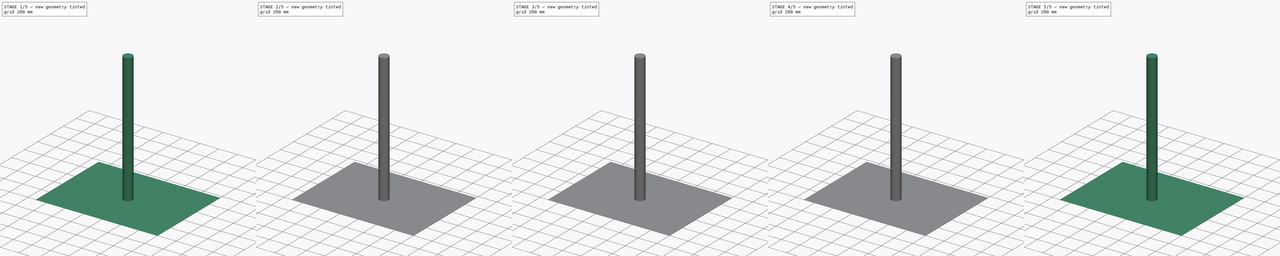
[diagram: build sequence overview — one tinted view per stage of 5, left to right]
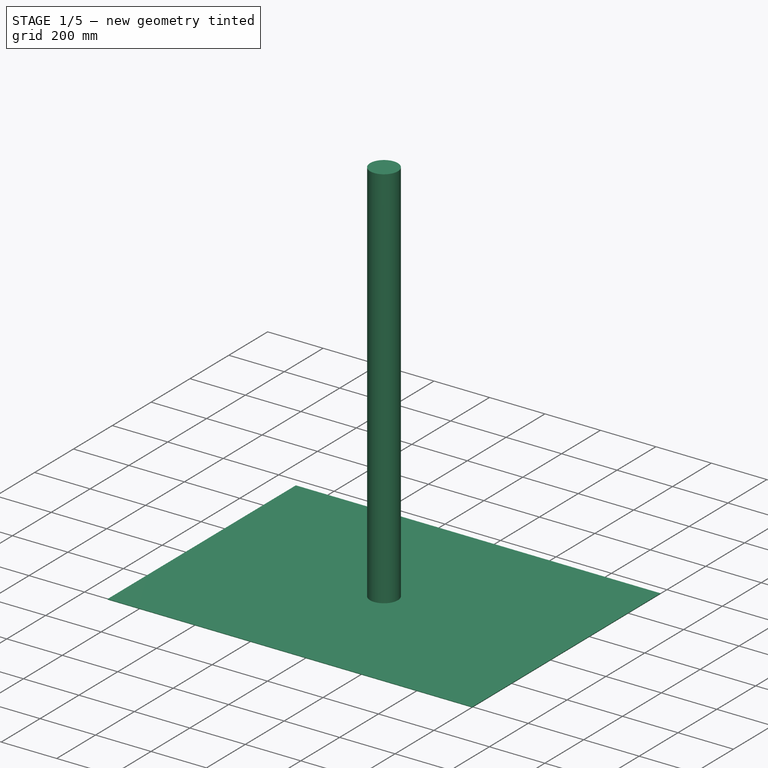
[diagram: stage 1 of 5 — iso view after this stage's code; geometry added in this stage tinted green]
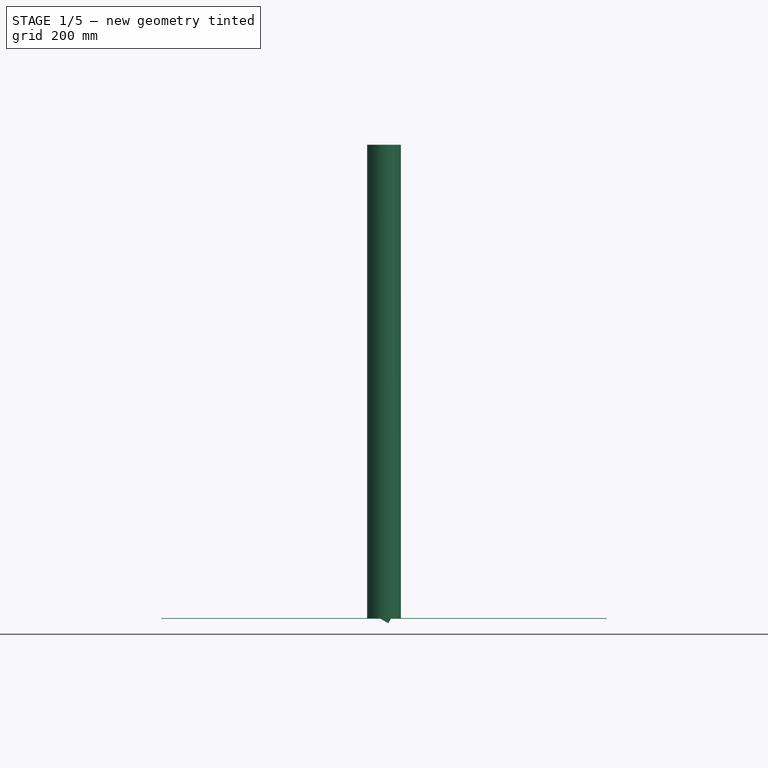
[diagram: stage 1 of 5 — front view after this stage's code; geometry added in this stage tinted green]
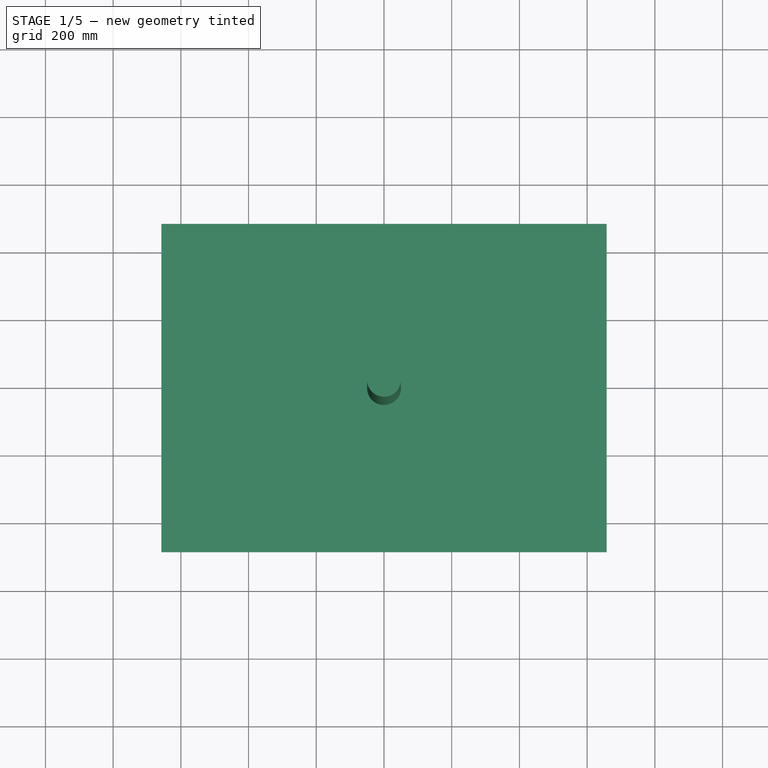
[diagram: stage 1 of 5 — top view after this stage's code; geometry added in this stage tinted green]
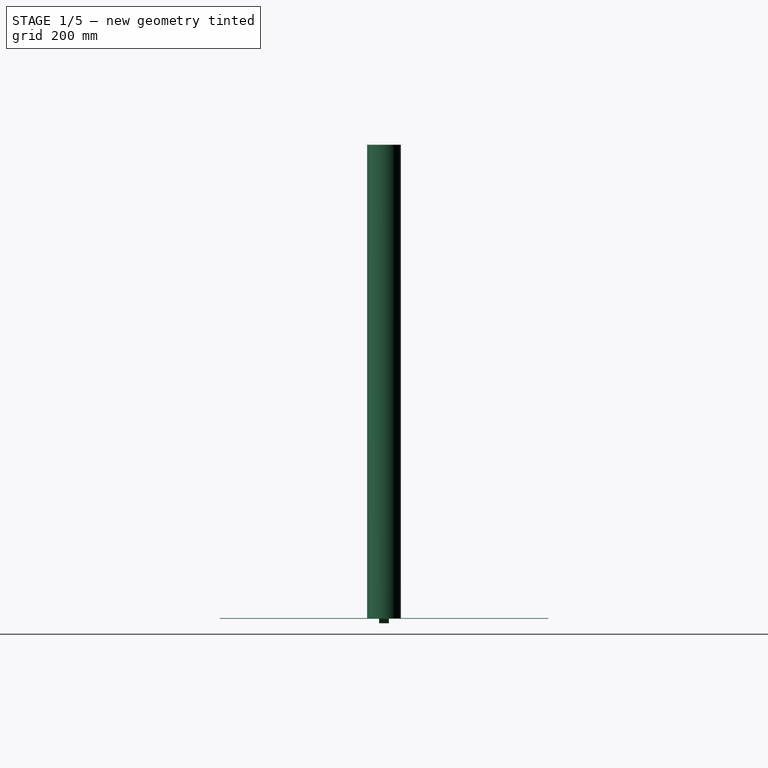
[diagram: stage 1 of 5 — right view after this stage's code; geometry added in this stage tinted green]
FCSTD DOCUMENT  (FreeCAD 0.18R16146 (Git))
Label: 05_CameraSupport
License: All rights reserved
LicenseURL: http://en.wikipedia.org/wiki/All_rights_reserved
objects: Part::Cylinder×20, Part::MultiFuse×16, Sketcher::SketchObject×6, Part::FeaturePython×6, PartDesign::Pad×5, PartDesign::Body×5, App::DocumentObjectGroup×3, Part::Box×2, Part::Part2DObjectPython×2, Part::Cut×2, Image::ImagePlane×1
note: 69 computed .brp shape members not serialized (recipe doc carries the construction recipe); baked Part::Feature solids carry a one-line shape summary decoded from their .brp

FEATURE [PartDesign::Body] Body002
  Group = -> [Sketch002,Pad002]
  Origin = -> Origin002
  Tip = -> Pad002
FEATURE [Image::ImagePlane] ImagePlane  label="Track"
  XSize = 1315
  YSize = 970
FEATURE [Part::Box] Box  label="Cube"
  AttacherType = Attacher::AttachEngine3D
  Height = 2
  Length = 1315
  Placement = pos=(-657.5,-485,0) rot=(0,0,1;0rad)
  Width = 970
FEATURE [Part::Cylinder] Cylinder018
  Angle = 360
  AttacherType = Attacher::AttachEngine3D
  Height = 1400
  Radius = 50
FEATURE [PartDesign::Body] Body004
  Group = -> [Sketch005,Pad004]
  Origin = -> Origin004
  Tip = -> Pad004
FEATURE [Part::Part2DObjectPython] Rectangle  # Draft 2D object (typed FeaturePython)
  ChamferSize = 0
  Columns = 1
  FilletRadius = 0
  Height = 84
  Length = 102
  MakeFace = true
  Placement = pos=(-28,-48,2) rot=(0,0,1;0rad)
  Rows = 1
FEATURE [Sketcher::SketchObject] Sketch004
  MapMode = 5
  Support = -> [XY_Plane003]
  sketch-geometry (8):
    g0: LineSegment StartX=-12 StartY=12 StartZ=0 EndX=12 EndY=12 EndZ=0
    g1: LineSegment StartX=12 StartY=12 StartZ=0 EndX=12 EndY=-12 EndZ=0
    g2: LineSegment StartX=12 StartY=-12 StartZ=0 EndX=-12 EndY=-12 EndZ=0
    g3: LineSegment StartX=-12 StartY=-12 StartZ=0 EndX=-12 EndY=12 EndZ=0
    g4: LineSegment StartX=-14.5 StartY=14.5 StartZ=0 EndX=14.5 EndY=14.5 EndZ=0
    g5: LineSegment StartX=14.5 StartY=14.5 StartZ=0 EndX=14.5 EndY=-14.5 EndZ=0
    g6: LineSegment StartX=14.5 StartY=-14.5 StartZ=0 EndX=-14.5 EndY=-14.5 EndZ=0
    g7: LineSegment StartX=-14.5 StartY=-14.5 StartZ=0 EndX=-14.5 EndY=14.5 EndZ=0
  constraints (20):
    c: Coincident(g0,g1)
    c: Coincident(g1,g2)
    c: Coincident(g2,g3)
    c: Coincident(g3,g0)
    c: Horizontal(g2)
    c: Vertical(g1)
    c: Symmetric(g0,g0,g-2)
    c: Symmetric(g0,g2,g-1)
    c: DistanceX(g0,g0) = 24
    c: DistanceY(g3,g3) = 24
    c: Coincident(g4,g5)
    c: Coincident(g5,g6)
    c: Coincident(g6,g7)
    c: Coincident(g7,g4)
    c: Horizontal(g6)
    c: Vertical(g5)
    c: Symmetric(g4,g4,g-2)
    c: Symmetric(g4,g6,g-1)
    c: DistanceY(g7,g7) = 29
    c: DistanceX(g4,g4) = 29
FEATURE [PartDesign::Pad] Pad003
  Length = 60
  Length2 = 100
  Profile = -> Sketch004
  Type = 0
FEATURE [PartDesign::Body] Body003
  Group = -> [Sketch004,Pad003]
  Origin = -> Origin003
  Placement = pos=(0,0,-6) rot=(0,1,0;0.523599rad)
  Tip = -> Pad003
FEATURE [Part::FeaturePython] Slice  # WARN: FeaturePython — macro-defined, semantics opaque (R4)
  Base = -> Body003
  Mode = 1
  Tolerance = 0
  Tools = -> [Rectangle]
FEATURE [Part::FeaturePython] Slice_child0  label="Slice.0"  # WARN: FeaturePython — macro-defined, semantics opaque (R4)
  Base = -> Slice
  FilterType = 1
  Invert = false
  OverrideMaxVal = 0
  WindowFrom = 80
  WindowTo = 100
  items = 0
FEATURE [Part::FeaturePython] Slice_child1  label="Slice.1"  # WARN: FeaturePython — macro-defined, semantics opaque (R4)
  Base = -> Slice
  FilterType = 1
  Invert = false
  OverrideMaxVal = 0
  WindowFrom = 80
  WindowTo = 100
  items = 1
FEATURE [App::DocumentObjectGroup] GrExplode_Slice  label="Exploded Slice"
  Group = -> [Slice_child0,Slice_child1]
FEATURE [Part::FeaturePython] Slice001  # WARN: FeaturePython — macro-defined, semantics opaque (R4)
  Base = -> Slice_child1
  Mode = 1
  Tolerance = 0
  Tools = -> [Rectangle001]
FEATURE [Part::FeaturePython] Slice001_child0  label="Slice001.0"  # WARN: FeaturePython — macro-defined, semantics opaque (R4)
  Base = -> Slice001
  FilterType = 1
  Invert = false
  OverrideMaxVal = 0
  WindowFrom = 80
  WindowTo = 100
  items = 0
FEATURE [Part::FeaturePython] Slice001_child1  label="Slice001.1"  # WARN: FeaturePython — macro-defined, semantics opaque (R4)
  Base = -> Slice001
  FilterType = 1
  Invert = false
  OverrideMaxVal = 0
  WindowFrom = 80
  WindowTo = 100
  items = 1
FEATURE [Part::Cylinder] Cylinder025
  Angle = 360
  AttacherType = Attacher::AttachEngine3D
  Height = 40
  Placement = pos=(-17,0,20.5) rot=(0,1,0;1.5708rad)
  Radius = 13
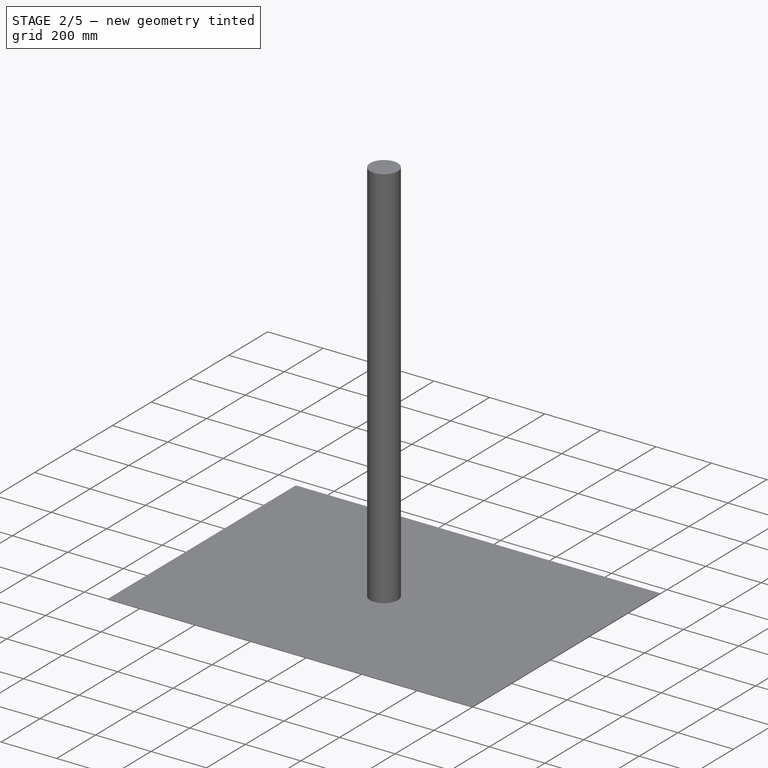
[diagram: stage 2 of 5 — iso view after this stage's code; geometry added in this stage tinted green]
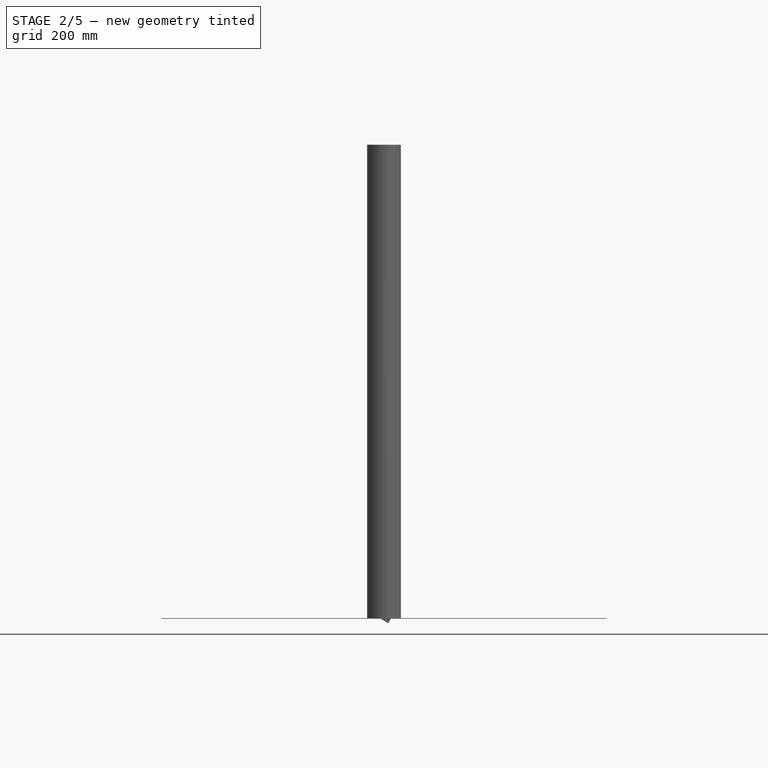
[diagram: stage 2 of 5 — front view after this stage's code; geometry added in this stage tinted green]
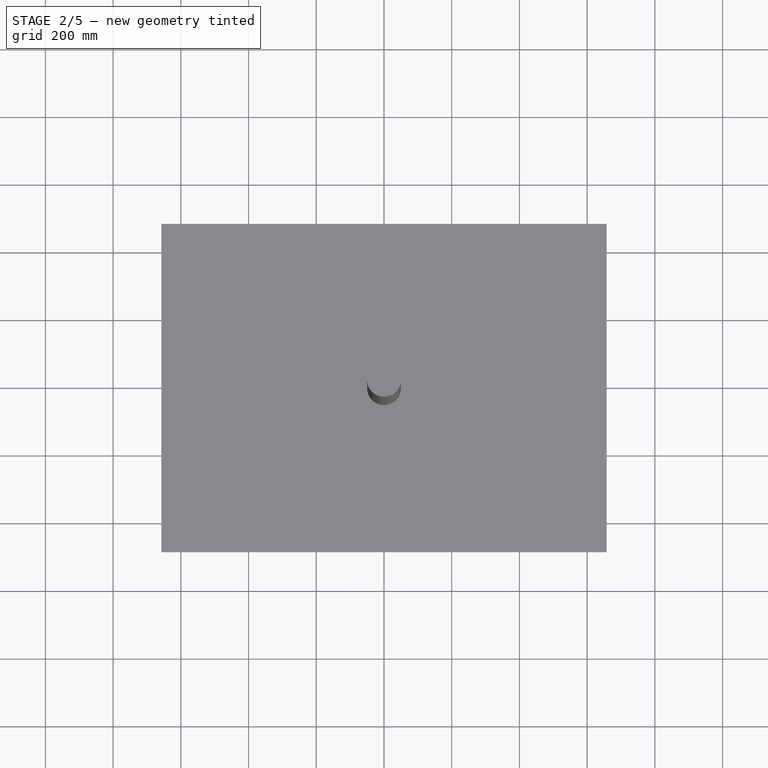
[diagram: stage 2 of 5 — top view after this stage's code; geometry added in this stage tinted green]
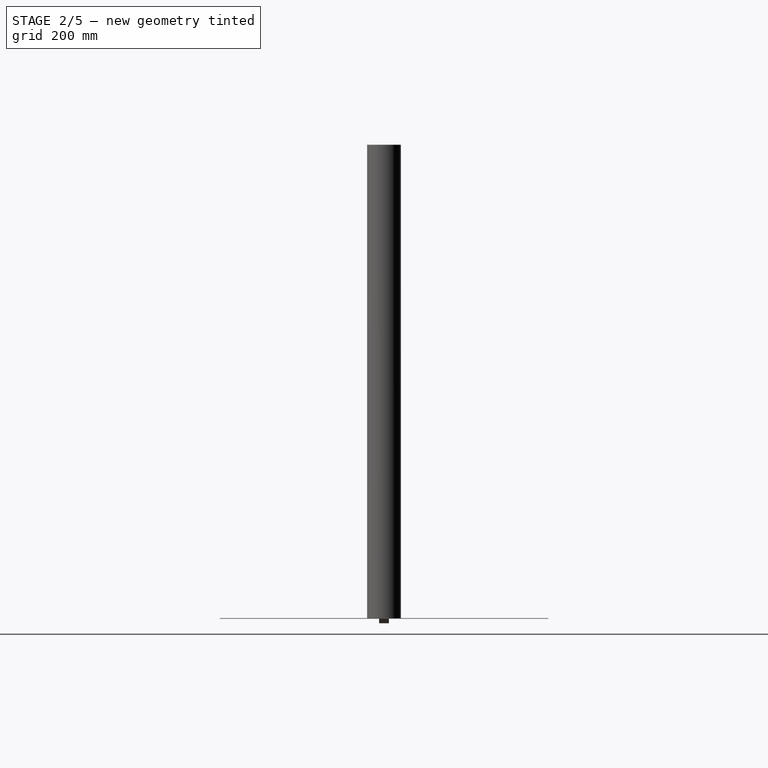
[diagram: stage 2 of 5 — right view after this stage's code; geometry added in this stage tinted green]
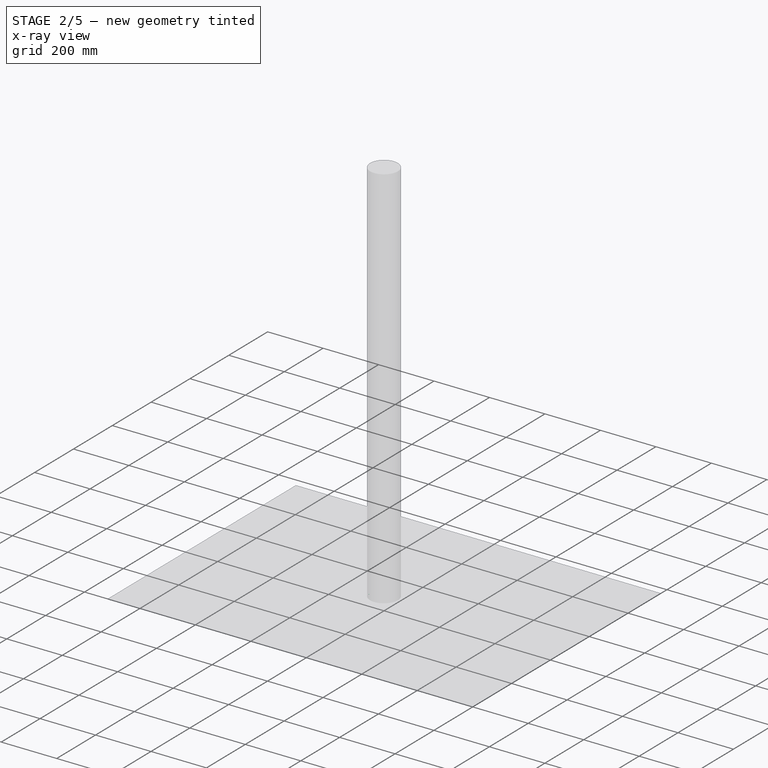
[diagram: stage 2 of 5 — x-ray composite at the iso view; earlier geometry ghosted, this stage's added geometry solid]
FEATURE [Sketcher::SketchObject] Sketch003
  Placement = pos=(0,0,0) rot=(0.57735,0.57735,0.57735;2.0944rad)
  sketch-geometry (3):
    g0: LineSegment StartX=609.509 StartY=0.13624 StartZ=0 EndX=100 EndY=1400 EndZ=0
    g1: LineSegment StartX=0 StartY=1400 StartZ=0 EndX=100 EndY=1400 EndZ=0
    g2: LineSegment StartX=509.509 StartY=0.13624 StartZ=0 EndX=609.509 EndY=0.13624 EndZ=0
  constraints (8):
    c: Horizontal(g1)
    c: Coincident(g0,g1)
    c: Coincident(g2,g0)
    c: Horizontal(g2)
    c: DistanceX(g1,g1) = 100
    c: DistanceX(g1,g-1) = 0
    c: DistanceX(g2,g2) = 100
    c: Angle(g1,g0) = 1.91986
FEATURE [Part::Part2DObjectPython] Rectangle001  # Draft 2D object (typed FeaturePython)
  ChamferSize = 0
  Columns = 1
  FilletRadius = 0
  Height = 84
  Length = 102
  MakeFace = true
  Placement = pos=(-28,-48,22) rot=(0,0,1;0rad)
  Rows = 1
FEATURE [Sketcher::SketchObject] Sketch005
  MapMode = 5
  Support = -> [XY_Plane004]
  sketch-geometry (12):
    g0: LineSegment StartX=-13.626 StartY=19 StartZ=0 EndX=14.386 EndY=19 EndZ=0
    g1: LineSegment StartX=19 StartY=14.386 StartZ=0 EndX=19 EndY=-14.2785 EndZ=0
    g2: LineSegment StartX=14.2785 StartY=-19 StartZ=0 EndX=-14.386 EndY=-19 EndZ=0
    g3: LineSegment StartX=-19 StartY=-14.386 StartZ=0 EndX=-19 EndY=13.626 EndZ=0
    g4: ArcOfCircle CenterX=-13.626 CenterY=13.626 CenterZ=0 NormalX=0 NormalY=0 NormalZ=1 AngleXU=0 Radius=5.37401 StartAngle=1.5708 EndAngle=3.14159
    g5: ArcOfCircle CenterX=14.386 CenterY=14.386 CenterZ=0 NormalX=0 NormalY=0 NormalZ=1 AngleXU=0 Radius=4.61401 StartAngle=0 EndAngle=1.5708
    g6: ArcOfCircle CenterX=14.2785 CenterY=-14.2785 CenterZ=0 NormalX=0 NormalY=0 NormalZ=1 AngleXU=0 Radius=4.72149 StartAngle=4.71239 EndAngle=6.28319
    g7: ArcOfCircle CenterX=-14.386 CenterY=-14.386 CenterZ=0 NormalX=0 NormalY=0 NormalZ=1 AngleXU=0 Radius=4.61401 StartAngle=3.14159 EndAngle=4.71239
    g8: Circle CenterX=-14 CenterY=14 CenterZ=0 NormalX=0 NormalY=0 NormalZ=1 AngleXU=0 Radius=0.5
    g9: Circle CenterX=14 CenterY=14 CenterZ=0 NormalX=0 NormalY=0 NormalZ=1 AngleXU=0 Radius=0.5
    g10: Circle CenterX=14 CenterY=-14 CenterZ=0 NormalX=0 NormalY=0 NormalZ=1 AngleXU=0 Radius=0.5
    g11: Circle CenterX=-14 CenterY=-14 CenterZ=0 NormalX=0 NormalY=0 NormalZ=1 AngleXU=0 Radius=0.5
  constraints (10):
    c: Horizontal(g2)
    c: Vertical(g1)
    c: Tangent(g0,g4) = 1.5708
    c: Tangent(g3,g4) = 1.5708
    c: Tangent(g0,g5) = 1.5708
    c: Tangent(g1,g5) = 1.5708
    c: Tangent(g1,g6) = 1.5708
    c: Tangent(g2,g6) = 1.5708
    c: Tangent(g2,g7) = 1.5708
    c: Tangent(g3,g7) = 1.5708
FEATURE [PartDesign::Pad] Pad004
  Length = 3
  Length2 = 100
  Profile = -> Sketch005
  Type = 0
FEATURE [App::DocumentObjectGroup] GrExplode_Slice001  label="Exploded Slice001"
  Group = -> [Slice001_child0,Slice001_child1]
FEATURE [Part::Cylinder] Cylinder019
  Angle = 360
  AttacherType = Attacher::AttachEngine3D
  Height = 8
  Radius = 1.3
FEATURE [Part::Cylinder] Cylinder020
  Angle = 360
  AttacherType = Attacher::AttachEngine3D
  Height = 7
  Radius = 3
FEATURE [Part::MultiFuse] Fusion023
  Placement = pos=(-39,-24.5,0) rot=(0,0,1;0rad)
  Shapes = -> [Cylinder020,Cylinder019]
FEATURE [Part::Cylinder] Cylinder023
  Angle = 360
  AttacherType = Attacher::AttachEngine3D
  Height = 23
  Placement = pos=(-2e-15,0,7) rot=(0,1,0;1.5708rad)
  Radius = 13
FEATURE [Part::Cylinder] Cylinder024
  Angle = 360
  AttacherType = Attacher::AttachEngine3D
  Height = 23
  Placement = pos=(-2e-15,0,7) rot=(0,1,0;1.5708rad)
  Radius = 15.5
FEATURE [Part::Cut] Cut
  Base = -> Cylinder024
  Placement = pos=(-11.5,0,13.5) rot=(0,0,1;0rad)
  Tool = -> Cylinder023
FEATURE [Part::Box] Box001  label="Cube001"
  AttacherType = Attacher::AttachEngine3D
  Height = 20
  Length = 23
  Placement = pos=(-11.5,-15.5,0) rot=(0,0,1;0rad)
  Width = 31
FEATURE [Part::Cut] Cut001
  Base = -> Box001
  Tool = -> Cylinder025
FEATURE [Part::MultiFuse] Fusion027  label="52_RaspCamSupportFixer"
  Shapes = -> [Body004,Cut,Cut001]
FEATURE [App::DocumentObjectGroup] Group  label="Resources"
  Group = -> [ImagePlane,Box,Cylinder018,Sketch003,GrExplode_Slice,GrExplode_Slice001]
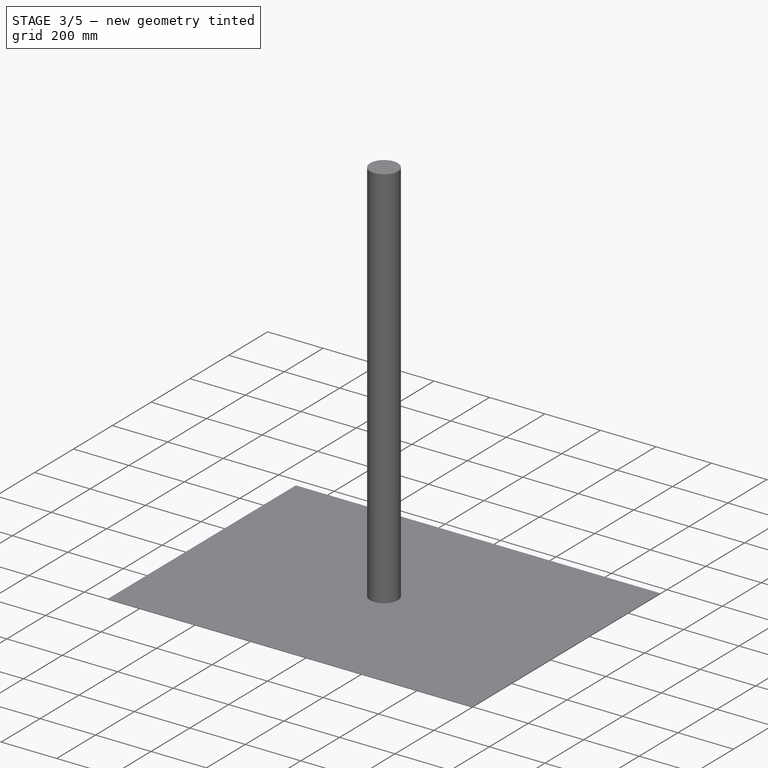
[diagram: stage 3 of 5 — iso view after this stage's code; geometry added in this stage tinted green]
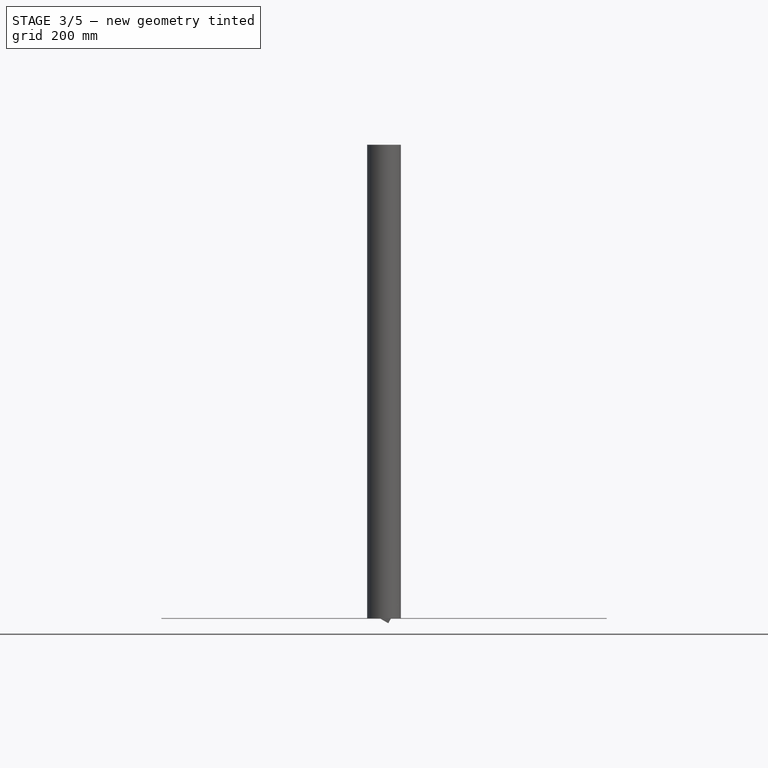
[diagram: stage 3 of 5 — front view after this stage's code; geometry added in this stage tinted green]
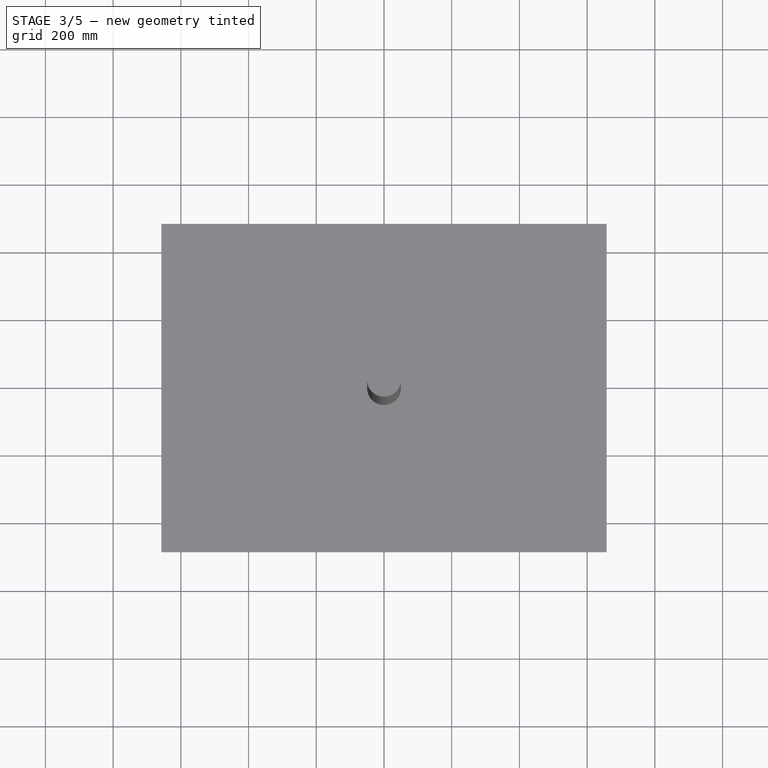
[diagram: stage 3 of 5 — top view after this stage's code; geometry added in this stage tinted green]
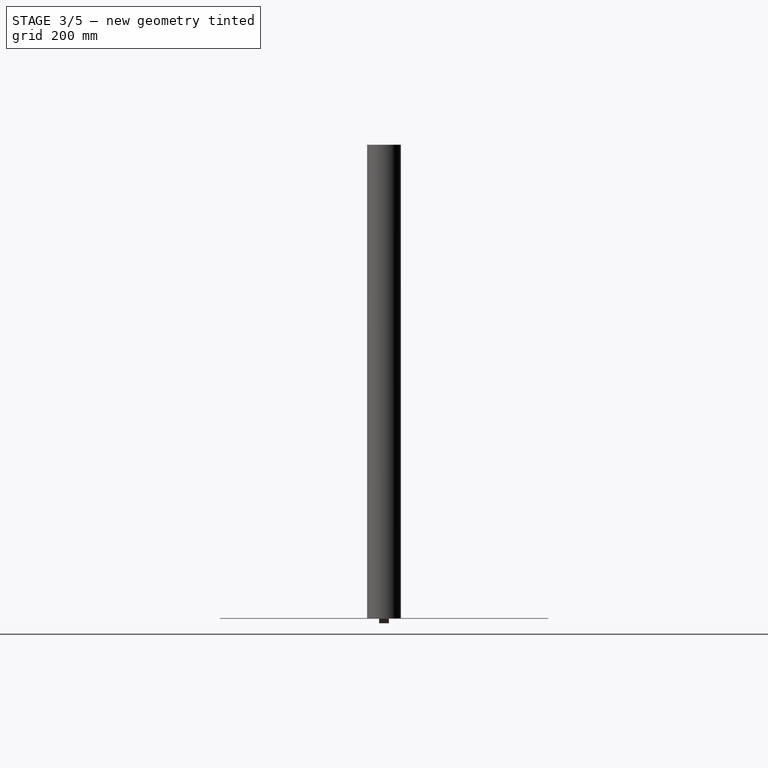
[diagram: stage 3 of 5 — right view after this stage's code; geometry added in this stage tinted green]
FEATURE [Part::Cylinder] Cylinder008
  Angle = 360
  AttacherType = Attacher::AttachEngine3D
  Height = 7
  Radius = 3
FEATURE [Part::Cylinder] Cylinder011
  Angle = 360
  AttacherType = Attacher::AttachEngine3D
  Height = 8
  Radius = 1.3
FEATURE [Part::MultiFuse] Fusion007
  Placement = pos=(-39,24.5,0) rot=(0,0,1;0rad)
  Shapes = -> [Cylinder008,Cylinder011]
FEATURE [Part::Cylinder] Cylinder012
  Angle = 360
  AttacherType = Attacher::AttachEngine3D
  Height = 7
  Radius = 3
FEATURE [Part::Cylinder] Cylinder013
  Angle = 360
  AttacherType = Attacher::AttachEngine3D
  Height = 8
  Radius = 1.3
FEATURE [Part::MultiFuse] Fusion008
  Placement = pos=(-39,-24.5,0) rot=(0,0,1;0rad)
  Shapes = -> [Cylinder012,Cylinder013]
FEATURE [Part::MultiFuse] Fusion009
  Shapes = -> [Fusion008,Fusion007]
FEATURE [Part::Cylinder] Cylinder021
  Angle = 360
  AttacherType = Attacher::AttachEngine3D
  Height = 7
  Radius = 3
FEATURE [Part::Cylinder] Cylinder022
  Angle = 360
  AttacherType = Attacher::AttachEngine3D
  Height = 8
  Radius = 1.3
FEATURE [Part::MultiFuse] Fusion022
  Placement = pos=(-39,24.5,0) rot=(0,0,1;0rad)
  Shapes = -> [Cylinder021,Cylinder022]
FEATURE [Part::MultiFuse] Fusion024
  Placement = pos=(58,0,0) rot=(0,0,1;0rad)
  Shapes = -> [Fusion023,Fusion022]
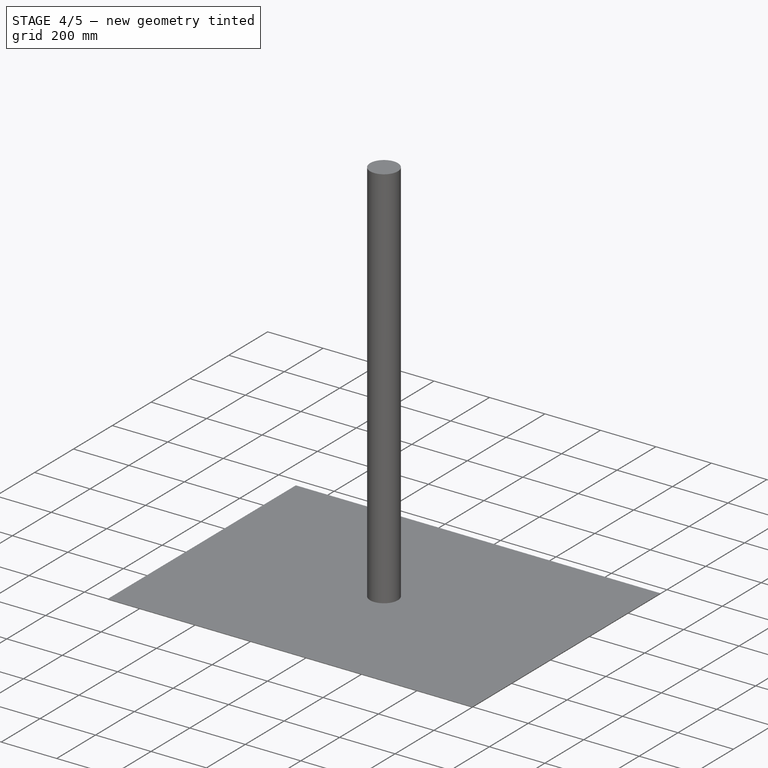
[diagram: stage 4 of 5 — iso view after this stage's code; geometry added in this stage tinted green]
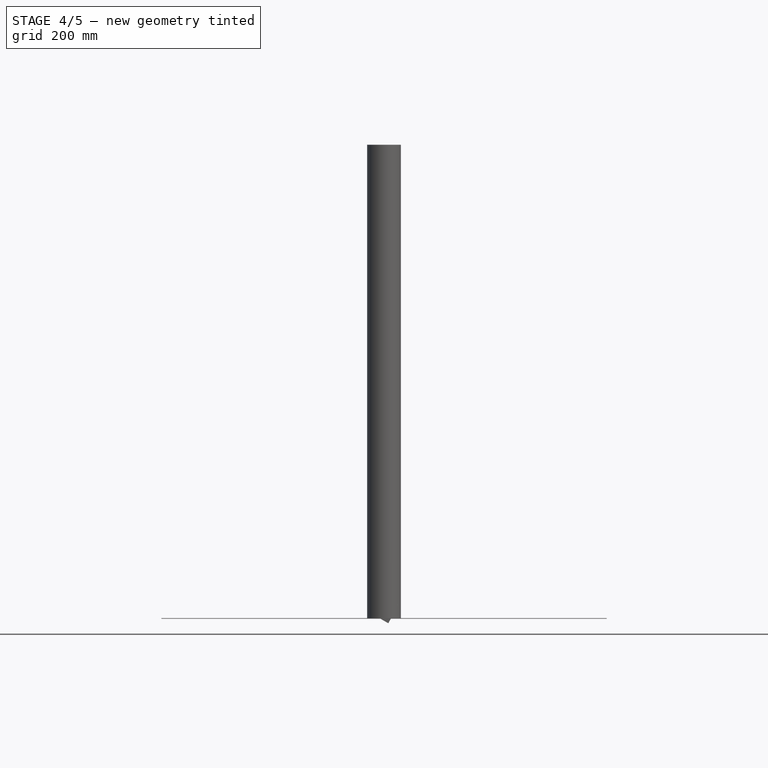
[diagram: stage 4 of 5 — front view after this stage's code; geometry added in this stage tinted green]
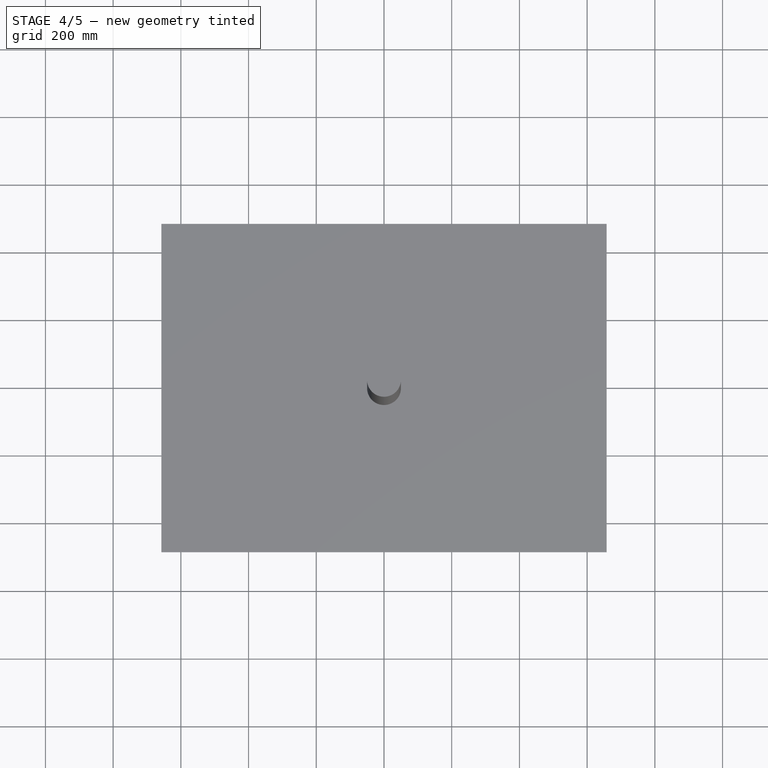
[diagram: stage 4 of 5 — top view after this stage's code; geometry added in this stage tinted green]
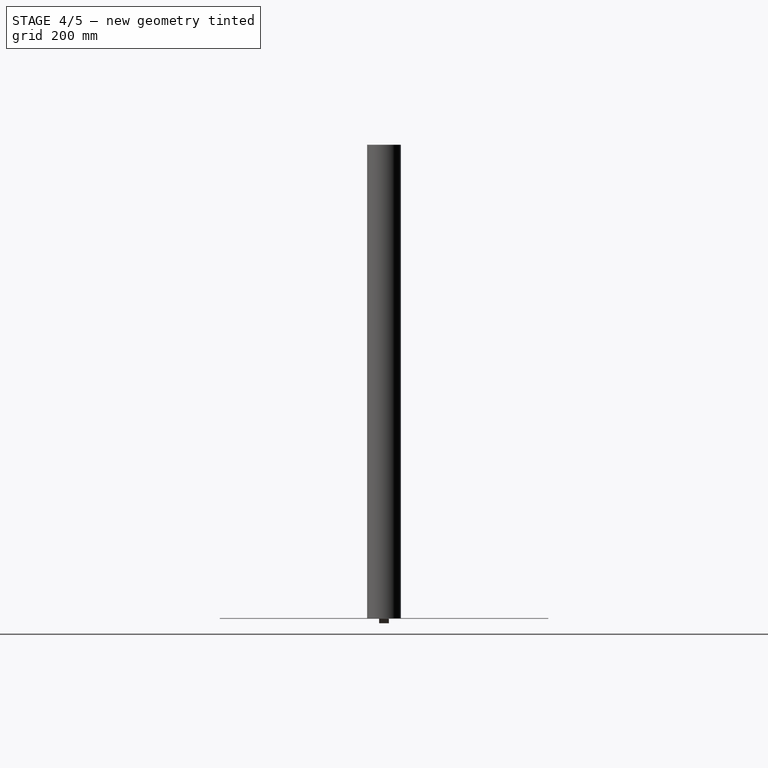
[diagram: stage 4 of 5 — right view after this stage's code; geometry added in this stage tinted green]
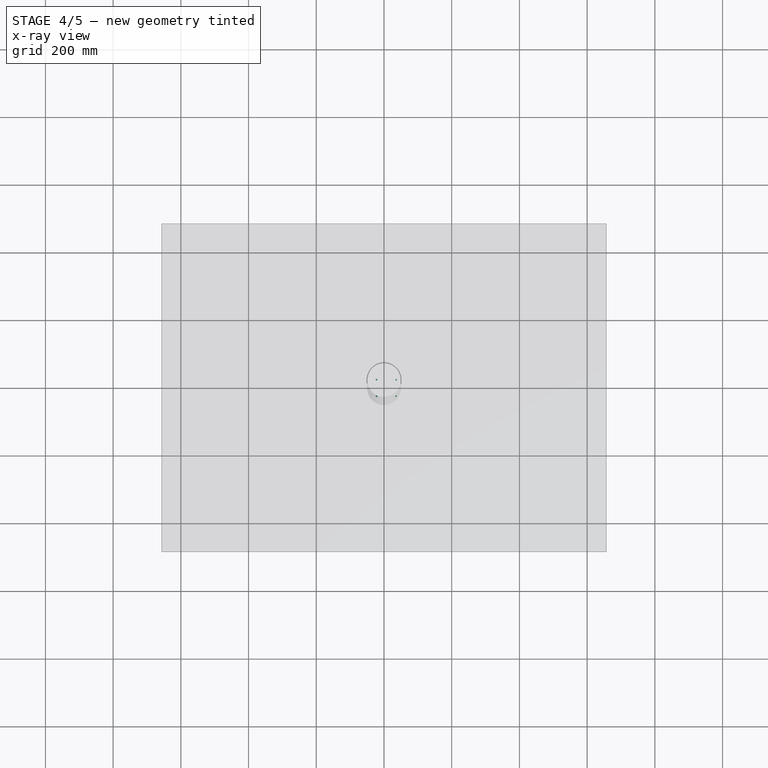
[diagram: stage 4 of 5 — x-ray composite at the top view; earlier geometry ghosted, this stage's added geometry solid]
FEATURE [Part::Cylinder] Cylinder003
  Angle = 360
  AttacherType = Attacher::AttachEngine3D
  Height = 6
  Radius = 1
FEATURE [Part::Cylinder] Cylinder004
  Angle = 360
  AttacherType = Attacher::AttachEngine3D
  Height = 5
  Radius = 2
FEATURE [Part::Cylinder] Cylinder005
  Angle = 360
  AttacherType = Attacher::AttachEngine3D
  Height = 5
  Radius = 2
FEATURE [Part::Cylinder] Cylinder006
  Angle = 360
  AttacherType = Attacher::AttachEngine3D
  Height = 6
  Radius = 1
FEATURE [Part::Cylinder] Cylinder007
  Angle = 360
  AttacherType = Attacher::AttachEngine3D
  Height = 6
  Radius = 1
FEATURE [Part::MultiFuse] Fusion003
  Placement = pos=(-10.5,-2.3,0) rot=(0,0,1;0rad)
  Shapes = -> [Cylinder004,Cylinder007]
FEATURE [Part::MultiFuse] Fusion004
  Placement = pos=(10.5,-2.3,0) rot=(0,0,1;0rad)
  Shapes = -> [Cylinder005,Cylinder006]
FEATURE [Part::MultiFuse] Fusion005
  Placement = pos=(0,12.2,0) rot=(0,0,1;0rad)
  Shapes = -> [Fusion003,Fusion004]
FEATURE [Sketcher::SketchObject] Sketch002
  MapMode = 5
  Support = -> [XY_Plane002]
  sketch-geometry (13):
    g0: LineSegment StartX=-49.4021 StartY=18.8408 StartZ=0 EndX=-88.6806 EndY=18.8408 EndZ=0
    g1: LineSegment StartX=-100.781 StartY=6.73998 StartZ=0 EndX=-100.781 EndY=-6.73998 EndZ=0
    g2: LineSegment StartX=-88.6806 StartY=-18.8408 StartZ=0 EndX=-49.411 EndY=-18.8408 EndZ=0
    g3: ArcOfCircle CenterX=-88.6806 CenterY=6.73998 CenterZ=0 NormalX=0 NormalY=0 NormalZ=1 AngleXU=0 Radius=12.1008 StartAngle=1.5708 EndAngle=3.14159
    g4: ArcOfCircle CenterX=-88.6806 CenterY=-6.73998 CenterZ=0 NormalX=0 NormalY=0 NormalZ=1 AngleXU=0 Radius=12.1008 StartAngle=3.14159 EndAngle=4.71239
    g5: LineSegment StartX=-49.1097 StartY=20.9087 StartZ=0 EndX=-49.1097 EndY=19.1333 EndZ=0
    g6: LineSegment StartX=-42.5 StartY=-27.9875 StartZ=0 EndX=-42.5 EndY=27.9836 EndZ=0
    g7: ArcOfCircle CenterX=-42.0811 CenterY=-20.9714 CenterZ=0 NormalX=0 NormalY=0 NormalZ=1 AngleXU=0 Radius=7.02863 StartAngle=3.14159 EndAngle=4.65275
    g8: ArcOfCircle CenterX=-42.0184 CenterY=20.9087 CenterZ=0 NormalX=0 NormalY=0 NormalZ=1 AngleXU=0 Radius=7.09128 StartAngle=1.63876 EndAngle=3.14159
    g9: LineSegment StartX=-49.1097 StartY=-19.1421 StartZ=0 EndX=-49.1097 EndY=-20.9714 EndZ=0
    g10: ArcOfCircle CenterX=-49.411 CenterY=-19.1421 CenterZ=0 NormalX=0 NormalY=0 NormalZ=1 AngleXU=0 Radius=0.301305 StartAngle=0 EndAngle=1.5708
    g11: ArcOfCircle CenterX=-49.4021 CenterY=19.1333 CenterZ=0 NormalX=0 NormalY=0 NormalZ=1 AngleXU=0 Radius=0.292445 StartAngle=4.71239 EndAngle=6.28319
    g12: Circle CenterX=-91.8714 CenterY=0 CenterZ=0 NormalX=0 NormalY=0 NormalZ=1 AngleXU=0 Radius=6.35336
  constraints (20):
    c: Horizontal(g0)
    c: Horizontal(g2)
    c: Vertical(g1)
    c: Tangent(g0,g3) = -1.5708
    c: Tangent(g1,g3) = -1.5708
    c: Tangent(g1,g4) = -1.5708
    c: Tangent(g2,g4) = -1.5708
    c: Symmetric(g0,g2,g-1)
    c: Vertical(g5)
    c: Vertical(g6)
    c: Coincident(g9,g7) = -1.5708
    c: Tangent(g5,g8) = -1.5708
    c: Tangent(g5,g9)
    c: Tangent(g2,g10) = 1.5708
    c: Tangent(g9,g10) = 1.5708
    c: Tangent(g0,g11) = 1.5708
    c: Tangent(g5,g11) = 1.5708
    c: PointOnObject(g12,g-1)
    c: Coincident(g7,g6)
    c: Coincident(g8,g6)
FEATURE [PartDesign::Pad] Pad002
  Length = 2
  Length2 = 100
  Profile = -> Sketch002
  Type = 0
FEATURE [Part::MultiFuse] Fusion025
  Placement = pos=(17,0,0) rot=(0,0,1;0rad)
  Shapes = -> [Fusion009,Fusion024]
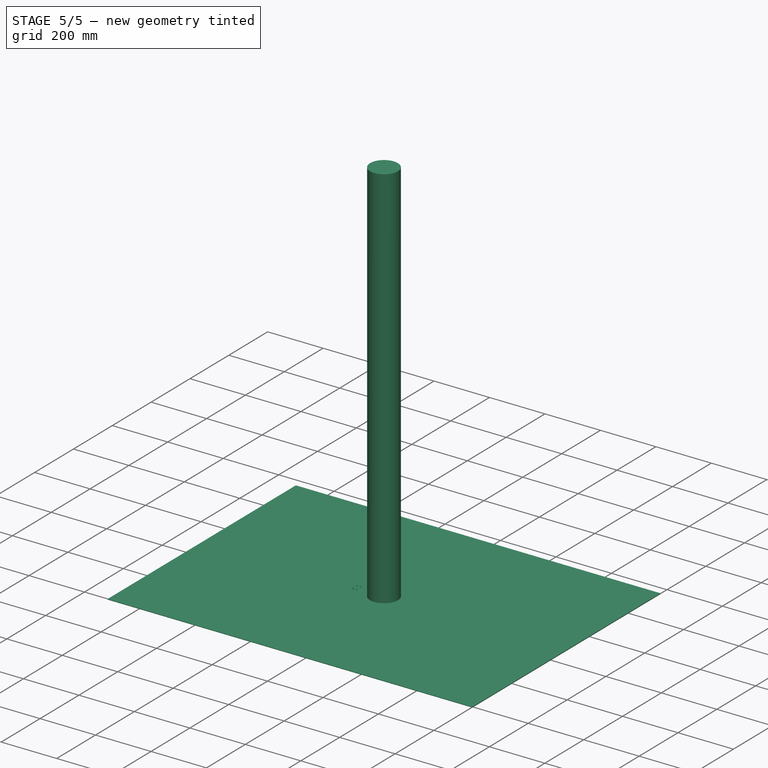
[diagram: stage 5 of 5 — iso view after this stage's code; geometry added in this stage tinted green]
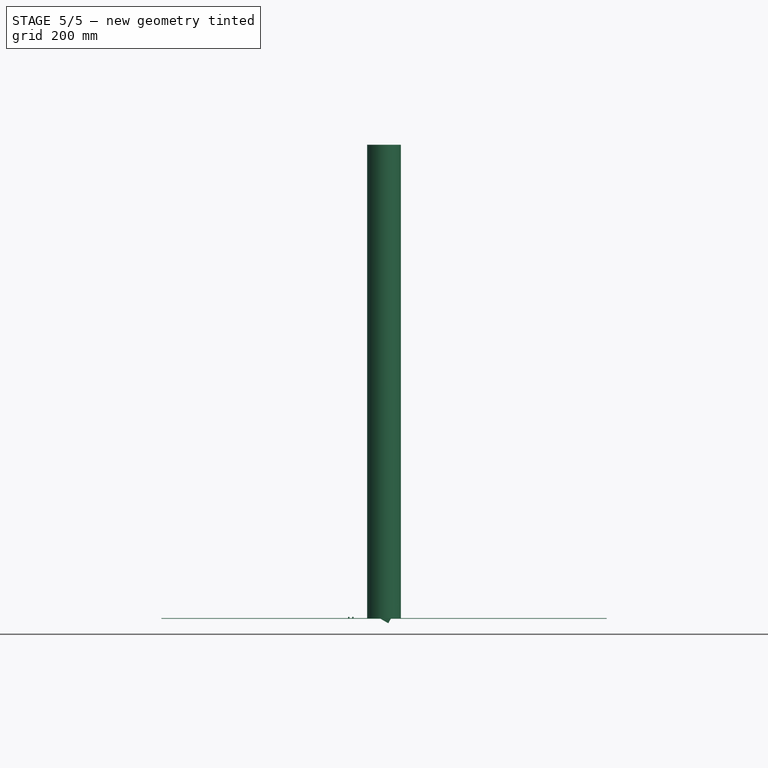
[diagram: stage 5 of 5 — front view after this stage's code; geometry added in this stage tinted green]
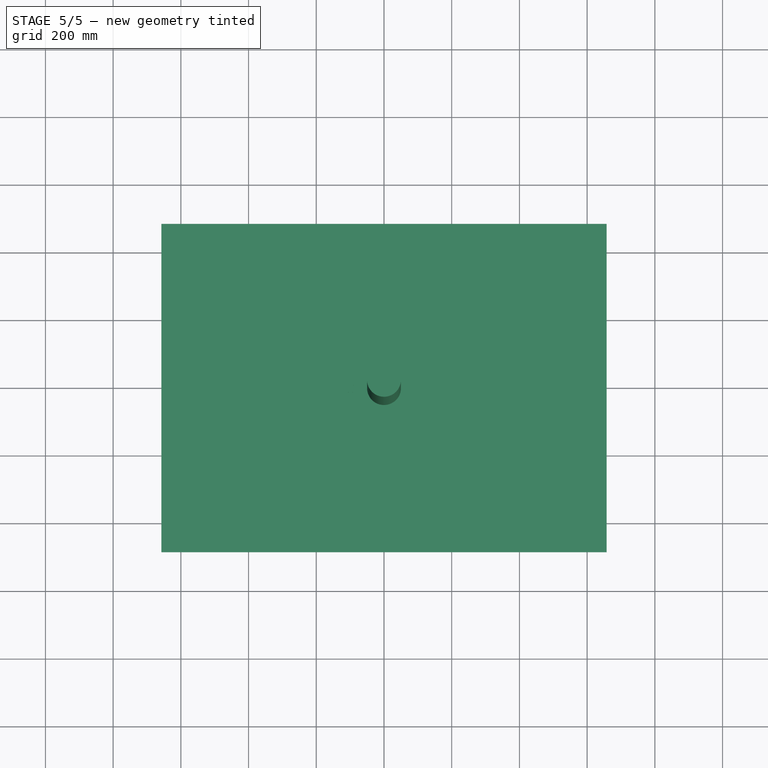
[diagram: stage 5 of 5 — top view after this stage's code; geometry added in this stage tinted green]
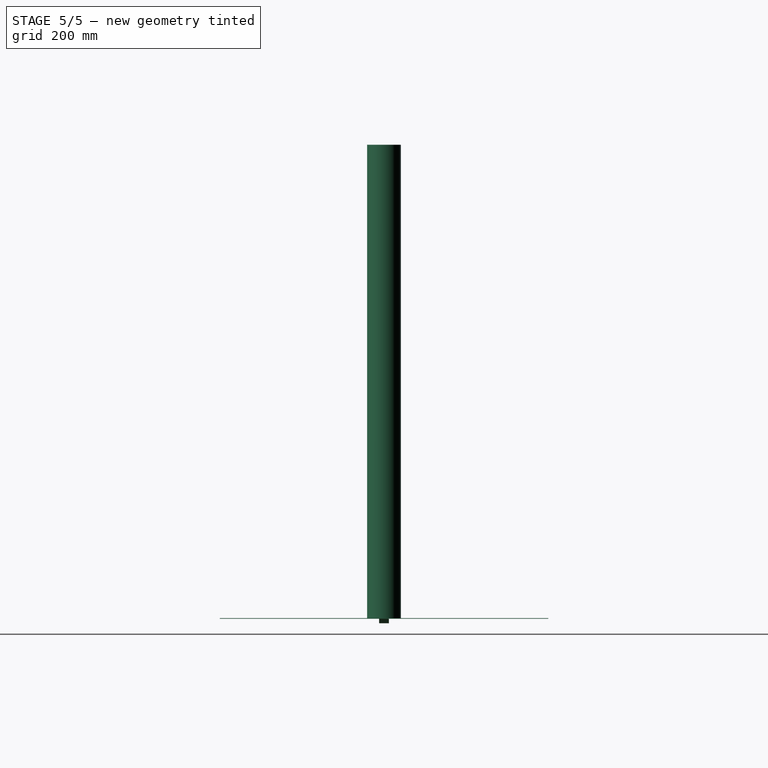
[diagram: stage 5 of 5 — right view after this stage's code; geometry added in this stage tinted green]
FEATURE [Sketcher::SketchObject] Sketch
  MapMode = 5
  Support = -> [XY_Plane]
  sketch-geometry (14):
    g0: LineSegment StartX=-42.5 StartY=28 StartZ=0 EndX=41.5 EndY=28 EndZ=0
    g1: LineSegment StartX=42.5 StartY=27 StartZ=0 EndX=42.5 EndY=-26.6876 EndZ=0
    g2: LineSegment StartX=41.1876 StartY=-28 StartZ=0 EndX=-42.5 EndY=-28 EndZ=0
    g3: LineSegment StartX=-42.5 StartY=-28 StartZ=0 EndX=-42.5 EndY=28 EndZ=0
    g4: Circle CenterX=-22 CenterY=24.5 CenterZ=0 NormalX=0 NormalY=0 NormalZ=1 AngleXU=0 Radius=1.4
    g5: Circle CenterX=36 CenterY=24.5 CenterZ=0 NormalX=0 NormalY=0 NormalZ=1 AngleXU=0 Radius=1.4
    g6: Circle CenterX=-14 CenterY=14 CenterZ=0 NormalX=0 NormalY=0 NormalZ=1 AngleXU=0 Radius=1.5
    g7: Circle CenterX=14 CenterY=14 CenterZ=0 NormalX=0 NormalY=0 NormalZ=1 AngleXU=0 Radius=1.5
    g8: Circle CenterX=-14 CenterY=-14 CenterZ=0 NormalX=0 NormalY=0 NormalZ=1 AngleXU=0 Radius=1.5
    g9: Circle CenterX=14 CenterY=-14 CenterZ=0 NormalX=0 NormalY=0 NormalZ=1 AngleXU=0 Radius=1.5
    g10: Circle CenterX=-22 CenterY=-24.5 CenterZ=0 NormalX=0 NormalY=0 NormalZ=1 AngleXU=0 Radius=1.4
    g11: Circle CenterX=36 CenterY=-24.5 CenterZ=0 NormalX=0 NormalY=0 NormalZ=1 AngleXU=0 Radius=1.4
    g12: ArcOfCircle CenterX=41.5 CenterY=27 CenterZ=0 NormalX=0 NormalY=0 NormalZ=1 AngleXU=0 Radius=1 StartAngle=0 EndAngle=1.5708
    g13: ArcOfCircle CenterX=41.1876 CenterY=-26.6876 CenterZ=0 NormalX=0 NormalY=0 NormalZ=1 AngleXU=0 Radius=1.31235 StartAngle=4.71239 EndAngle=6.28319
  constraints (24):
    c: Coincident(g2,g3)
    c: Coincident(g3,g0)
    c: Horizontal(g2)
    c: Vertical(g1)
    c: Symmetric(g0,g2,g-1)
    c: DistanceY(g3,g3) = 56
    c: Radius(g4) = 1.4
    c: Equal(g4,g5) = 1.4
    c: DistanceX(g4,g5) = 58
    c: Radius(g6) = 1.5
    c: Radius(g7) = 1.5
    c: Symmetric(g6,g7,g-2)
    c: DistanceX(g6,g7) = 28
    c: DistanceY(g-1,g7) = 14
    c: Radius(g8) = 1.5
    c: Radius(g9) = 1.5
    c: DistanceY(g4,g0) = 3.5
    c: Horizontal(g4,g5)
    c: Radius(g10) = 1.4
    c: Equal(g10,g11) = 1.4
    c: Tangent(g1,g12) = 1.5708
    c: Tangent(g0,g12) = 1.5708
    c: Tangent(g2,g13) = 1.5708
    c: Tangent(g1,g13) = 1.5708
FEATURE [PartDesign::Pad] Pad
  Length = 2
  Length2 = 100
  Profile = -> Sketch
  Type = 0
FEATURE [PartDesign::Body] Body  label="opa"
  Group = -> [Sketch,Pad]
  Origin = -> Origin
  Tip = -> Pad
FEATURE [Sketcher::SketchObject] Sketch001
  MapMode = 5
  Support = -> [XY_Plane001]
  sketch-geometry (9):
    g0: LineSegment StartX=-12.5 StartY=11.9 StartZ=0 EndX=12.5 EndY=11.9 EndZ=0
    g1: LineSegment StartX=12.5 StartY=11.9 StartZ=0 EndX=12.5 EndY=-11.9 EndZ=0
    g2: LineSegment StartX=12.5 StartY=-11.9 StartZ=0 EndX=-12.5 EndY=-11.9 EndZ=0
    g3: LineSegment StartX=-12.5 StartY=-11.9 StartZ=0 EndX=-12.5 EndY=11.9 EndZ=0
    g4: Circle CenterX=-10.5 CenterY=9.9 CenterZ=0 NormalX=0 NormalY=0 NormalZ=1 AngleXU=0 Radius=1
    g5: Circle CenterX=10.5 CenterY=9.9 CenterZ=0 NormalX=0 NormalY=0 NormalZ=1 AngleXU=0 Radius=1
    g6: Circle CenterX=-10.5 CenterY=-2.3 CenterZ=0 NormalX=0 NormalY=0 NormalZ=1 AngleXU=0 Radius=1
    g7: Circle CenterX=10.5 CenterY=-2.3 CenterZ=0 NormalX=0 NormalY=0 NormalZ=1 AngleXU=0 Radius=1
    g8: Circle CenterX=0 CenterY=-2.1 CenterZ=0 NormalX=0 NormalY=0 NormalZ=1 AngleXU=0 Radius=4.5
  constraints (20):
    c: Coincident(g0,g1)
    c: Coincident(g1,g2)
    c: Coincident(g2,g3)
    c: Coincident(g3,g0)
    c: Horizontal(g2)
    c: Vertical(g1)
    c: Symmetric(g0,g0,g-2)
    c: Symmetric(g0,g2,g-1)
    c: DistanceX(g0,g0) = 25
    c: DistanceY(g3,g3) = 23.8
    c: Radius(g4) = 1
    c: DistanceX(g0,g4) = 2
    c: DistanceY(g4,g0) = 2
    c: Radius(g5) = 1
    c: Equal(g4,g6) = 1
    c: DistanceY(g6,g4) = 12.2
    c: Distance(g6,g3) = 2
    c: DistanceX(g8,g-1) = 0
    c: Radius(g8) = 4.5
    c: Distance(g8,g0) = 14
FEATURE [PartDesign::Pad] Pad001
  Length = 2
  Length2 = 100
  Profile = -> Sketch001
  Type = 0
FEATURE [PartDesign::Body] Body001  label="Ol"
  Group = -> [Sketch001,Pad001]
  Origin = -> Origin001
  Tip = -> Pad001
FEATURE [Part::Cylinder] Cylinder
  Angle = 360
  AttacherType = Attacher::AttachEngine3D
  Height = 5
  Radius = 2
FEATURE [Part::Cylinder] Cylinder001
  Angle = 360
  AttacherType = Attacher::AttachEngine3D
  Height = 6
  Radius = 1
FEATURE [Part::MultiFuse] Fusion
  Placement = pos=(-10.5,-2.3,0) rot=(0,0,1;0rad)
  Shapes = -> [Cylinder,Cylinder001]
FEATURE [Part::Cylinder] Cylinder002
  Angle = 360
  AttacherType = Attacher::AttachEngine3D
  Height = 5
  Radius = 2
FEATURE [Part::MultiFuse] Fusion001
  Placement = pos=(10.5,-2.3,0) rot=(0,0,1;0rad)
  Shapes = -> [Cylinder002,Cylinder003]
FEATURE [Part::MultiFuse] Fusion002
  Shapes = -> [Fusion,Fusion001]
FEATURE [Part::MultiFuse] Fusion006  label="RaspCamSupport002"
  Placement = pos=(-94,2.09e-14,0) rot=(0,0,1;1.5708rad)
  Shapes = -> [Body001,Fusion005,Fusion002]
FEATURE [Part::MultiFuse] Fusion026  label="51_RaspCamSupport"
  Shapes = -> [Fusion006,Body,Body002,Fusion025]
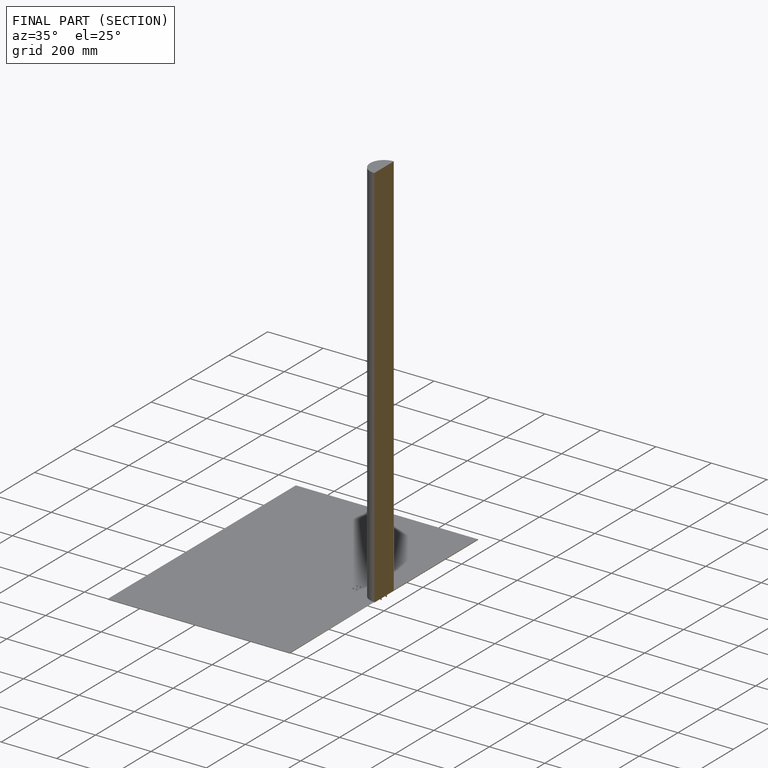
[diagram: finished part — half-section view (interior)]
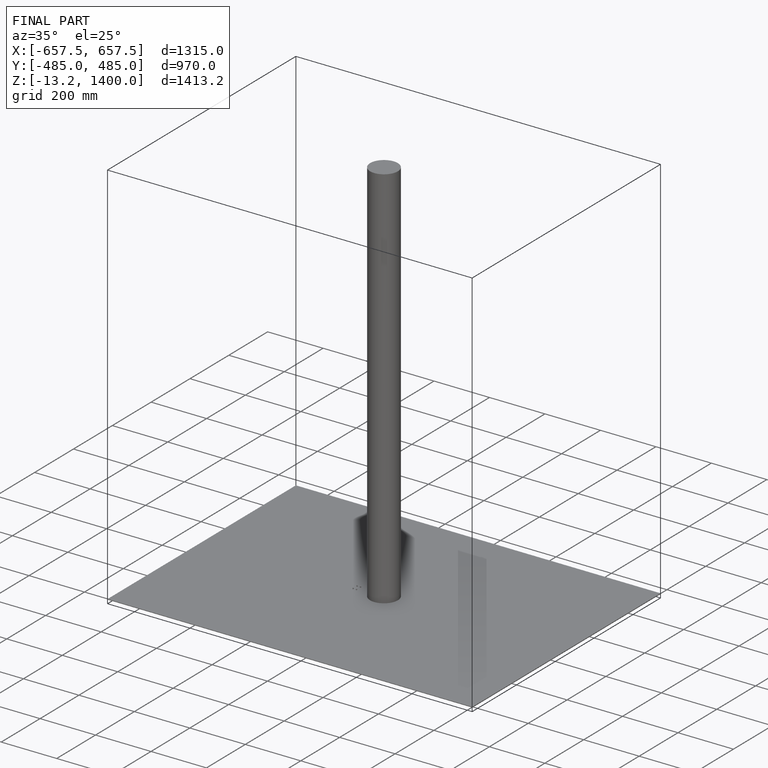
[diagram: finished part — iso view with bounding-box wireframe]
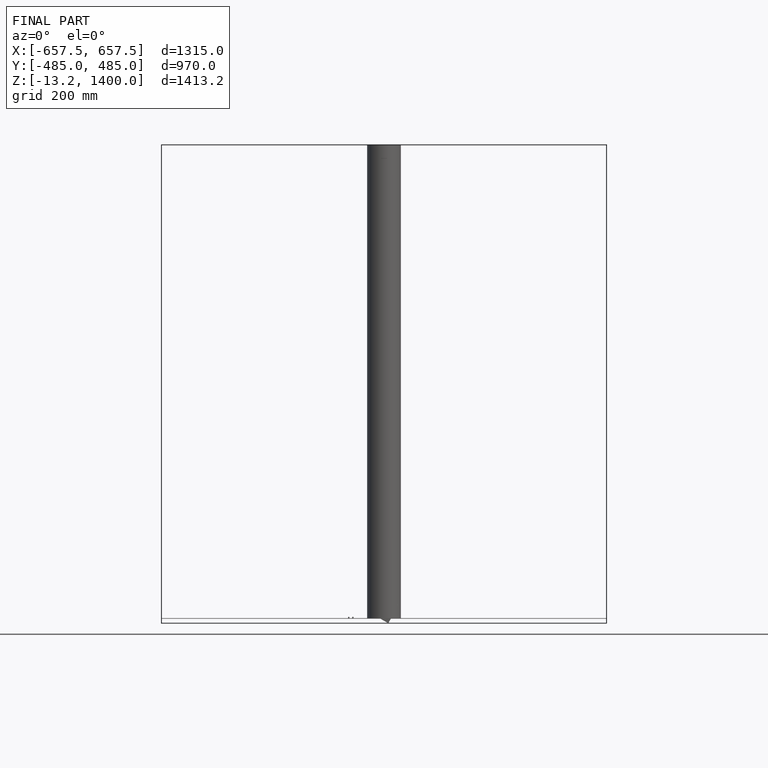
[diagram: finished part — front view with bounding-box wireframe]
